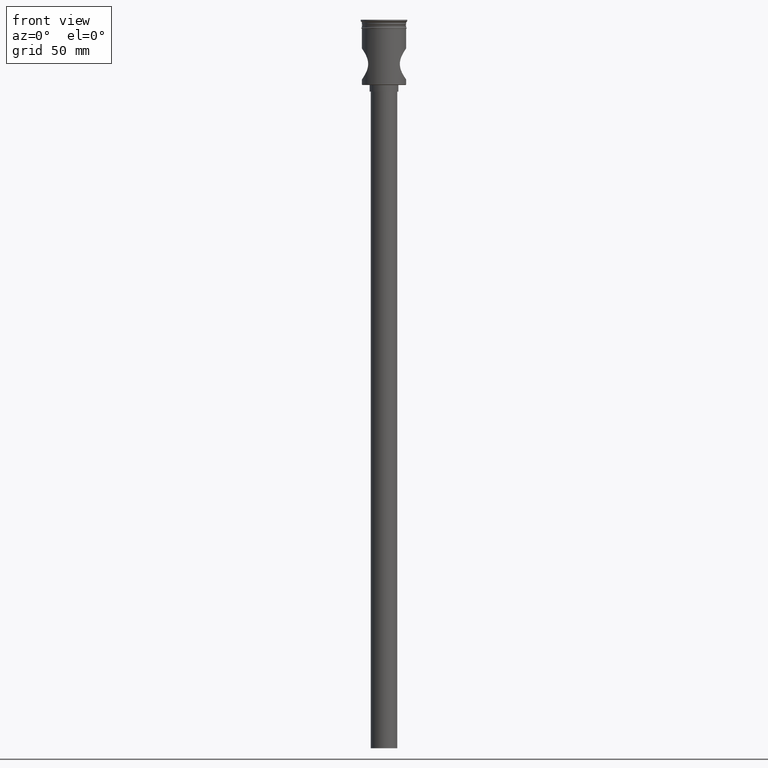
[diagram: clean part render]
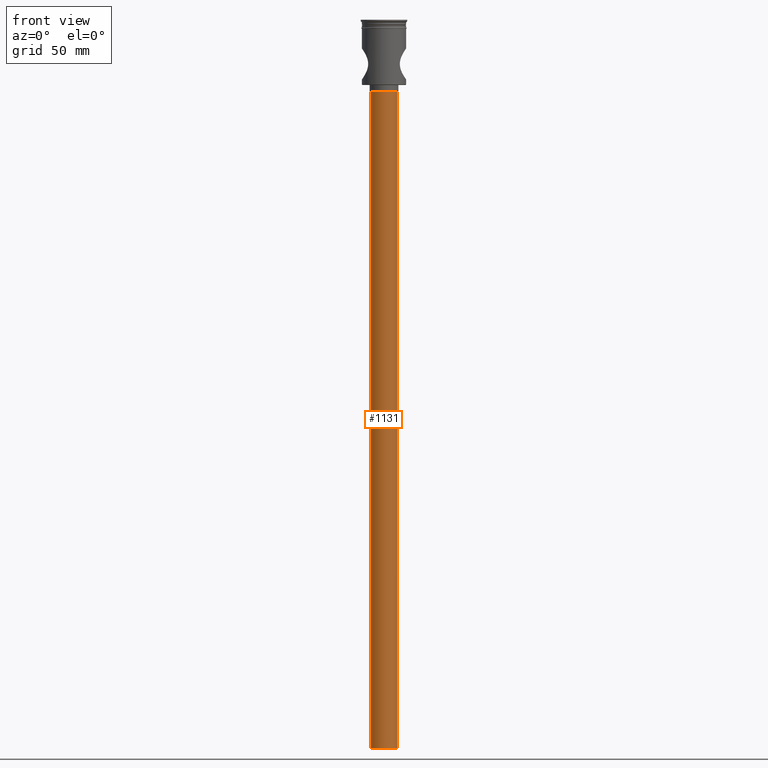
[diagram: same view with one face highlighted and labeled with its STEP entity id]
A machine part, front view. The second image highlights one B-rep face of the part: STEP entity #1131.
In plain terms, the highlighted cylindrical surface (edge-blend (fillet) strip) has radius 6 mm, axis along (-0, -0, 1).
Its self-contained STEP definition (entity closure, byte-faithful):
#58 = VERTEX_POINT ( 'NONE', #725 ) ;
#81 = CIRCLE ( 'NONE', #862, 6.000000000000000888 ) ;
#102 = CARTESIAN_POINT ( 'NONE',  ( -6.000000000000000888, 7.347880794884120722E-16, -329.5000000000000000 ) ) ;
#124 = EDGE_CURVE ( 'NONE', #381, #161, #300, .T. ) ;
#141 = CARTESIAN_POINT ( 'NONE',  ( -6.000000000000000888, 7.347880794884120722E-16, -32.50000000000000000 ) ) ;
#161 = VERTEX_POINT ( 'NONE', #1134 ) ;
#167 = DIRECTION ( 'NONE',  ( -1.000000000000000000, 0.000000000000000000, 0.000000000000000000 ) ) ;
#273 = EDGE_CURVE ( 'NONE', #161, #733, #811, .T. ) ;
#280 = CARTESIAN_POINT ( 'NONE',  ( 6.000000000000000888, 0.000000000000000000, -329.5000000000000000 ) ) ;
#300 = LINE ( 'NONE', #280, #815 ) ;
#381 = VERTEX_POINT ( 'NONE', #1496 ) ;
#572 = EDGE_LOOP ( 'NONE', ( #898, #694, #1501, #1189 ) ) ;
#694 = ORIENTED_EDGE ( 'NONE', *, *, #1489, .F. ) ;
#725 = CARTESIAN_POINT ( 'NONE',  ( -6.000000000000000888, 7.347880794884120722E-16, -329.5000000000000000 ) ) ;
#733 = VERTEX_POINT ( 'NONE', #141 ) ;
#805 = DIRECTION ( 'NONE',  ( -0.000000000000000000, -0.000000000000000000, 1.000000000000000000 ) ) ;
#811 = CIRCLE ( 'NONE', #1324, 6.000000000000000888 ) ;
#815 = VECTOR ( 'NONE', #1353, 1000.000000000000000 ) ;
#822 = DIRECTION ( 'NONE',  ( -0.000000000000000000, -0.000000000000000000, 1.000000000000000000 ) ) ;
#841 = DIRECTION ( 'NONE',  ( 0.000000000000000000, 0.000000000000000000, -1.000000000000000000 ) ) ;
#862 = AXIS2_PLACEMENT_3D ( 'NONE', #1456, #841, #167 ) ;
#898 = ORIENTED_EDGE ( 'NONE', *, *, #960, .F. ) ;
#920 = FACE_OUTER_BOUND ( 'NONE', #572, .T. ) ;
#960 = EDGE_CURVE ( 'NONE', #58, #733, #1474, .T. ) ;
#971 = DIRECTION ( 'NONE',  ( 0.000000000000000000, 0.000000000000000000, -1.000000000000000000 ) ) ;
#1109 = DIRECTION ( 'NONE',  ( -1.000000000000000000, 0.000000000000000000, 0.000000000000000000 ) ) ;
#1131 = ADVANCED_FACE ( 'NONE', ( #920 ), #1395, .T. ) ;
#1134 = CARTESIAN_POINT ( 'NONE',  ( 6.000000000000000888, 0.000000000000000000, -32.50000000000000000 ) ) ;
#1189 = ORIENTED_EDGE ( 'NONE', *, *, #273, .T. ) ;
#1220 = CARTESIAN_POINT ( 'NONE',  ( 0.000000000000000000, 0.000000000000000000, -32.50000000000000000 ) ) ;
#1251 = AXIS2_PLACEMENT_3D ( 'NONE', #1261, #805, #1366 ) ;
#1261 = CARTESIAN_POINT ( 'NONE',  ( 0.000000000000000000, 0.000000000000000000, -329.5000000000000000 ) ) ;
#1324 = AXIS2_PLACEMENT_3D ( 'NONE', #1220, #971, #1109 ) ;
#1353 = DIRECTION ( 'NONE',  ( -0.000000000000000000, -0.000000000000000000, 1.000000000000000000 ) ) ;
#1355 = VECTOR ( 'NONE', #822, 1000.000000000000000 ) ;
#1366 = DIRECTION ( 'NONE',  ( 1.000000000000000000, 0.000000000000000000, 0.000000000000000000 ) ) ;
#1395 = CYLINDRICAL_SURFACE ( 'NONE', #1251, 6.000000000000000888 ) ;
#1456 = CARTESIAN_POINT ( 'NONE',  ( 0.000000000000000000, 0.000000000000000000, -329.5000000000000000 ) ) ;
#1474 = LINE ( 'NONE', #102, #1355 ) ;
#1489 = EDGE_CURVE ( 'NONE', #381, #58, #81, .T. ) ;
#1496 = CARTESIAN_POINT ( 'NONE',  ( 6.000000000000000888, 0.000000000000000000, -329.5000000000000000 ) ) ;
#1501 = ORIENTED_EDGE ( 'NONE', *, *, #124, .T. ) ;